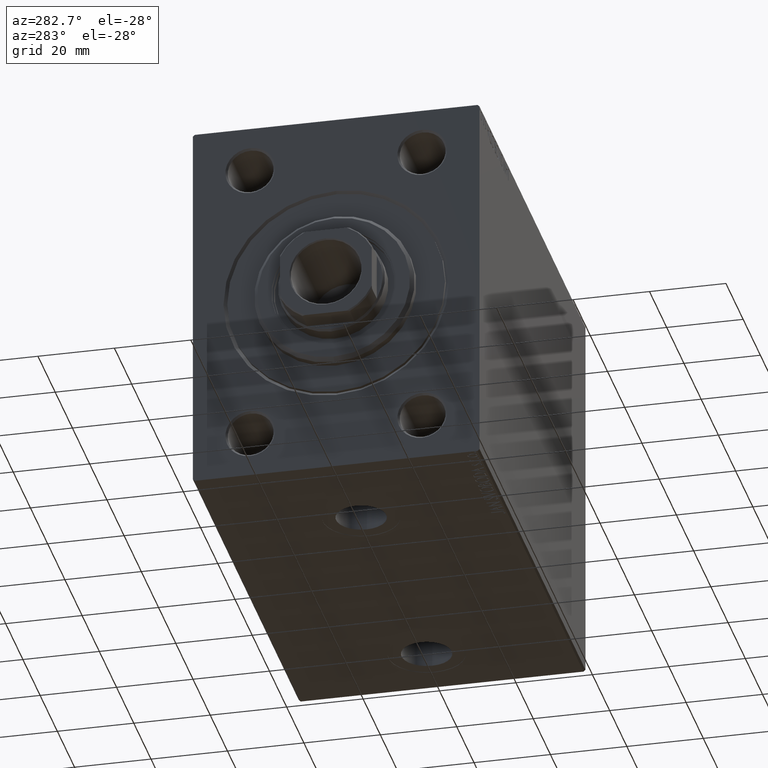
[diagram: clean part render]
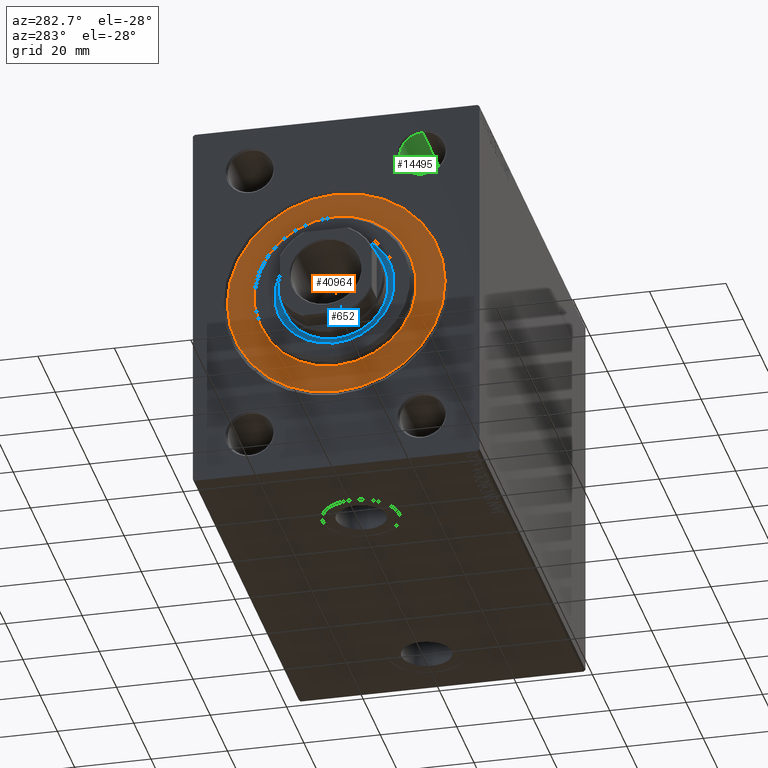
[diagram: same view with three faces highlighted in distinct colors, each labeled with its STEP entity id]
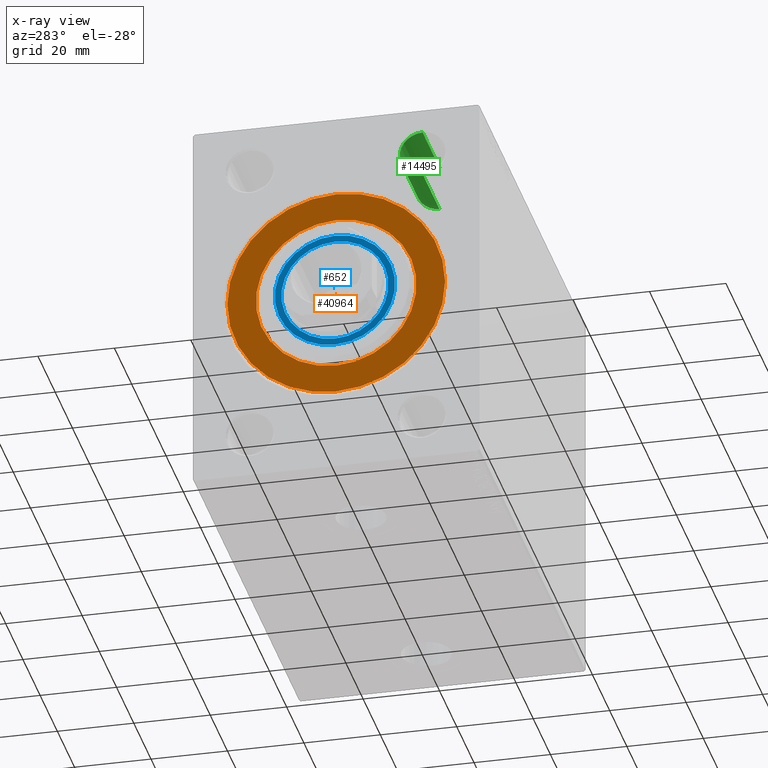
[diagram: x-ray of the same camera — body ghosted, the three highlighted faces saturated]
A machine part, auxiliary view with three faces highlighted in distinct colors.
The next image is the same camera in x-ray (body ghosted, the three faces saturated) — at least one of them is partly hidden behind the body in this view.
Their STEP definitions:

[orange] entity #40964 — the highlighted planar face has unit normal (1, -0, -0).
#242 = PLANE ( 'NONE',  #25212 ) ;
#1364 = DIRECTION ( 'NONE',  ( -1.000000000000000000, 0.000000000000000000, 0.000000000000000000 ) ) ;
#3196 = ORIENTED_EDGE ( 'NONE', *, *, #22097, .F. ) ;
#3577 = DIRECTION ( 'NONE',  ( 1.000000000000000000, -0.000000000000000000, 0.000000000000000000 ) ) ;
#4033 = CARTESIAN_POINT ( 'NONE',  ( 0.000000000000000000, 0.000000000000000000, 0.000000000000000000 ) ) ;
#4607 = FACE_BOUND ( 'NONE', #43104, .T. ) ;
#4690 = AXIS2_PLACEMENT_3D ( 'NONE', #26553, #1364, #30252 ) ;
#5368 = DIRECTION ( 'NONE',  ( 1.000000000000000000, -0.000000000000000000, 0.000000000000000000 ) ) ;
#6583 = CARTESIAN_POINT ( 'NONE',  ( 0.000000000000000000, 0.000000000000000000, 21.00000000000000000 ) ) ;
#6600 = VERTEX_POINT ( 'NONE', #33738 ) ;
#9009 = ORIENTED_EDGE ( 'NONE', *, *, #13818, .F. ) ;
#9510 = CARTESIAN_POINT ( 'NONE',  ( 0.000000000000000000, 0.000000000000000000, 0.000000000000000000 ) ) ;
#11171 = DIRECTION ( 'NONE',  ( 0.000000000000000000, 0.000000000000000000, -1.000000000000000000 ) ) ;
#11531 = DIRECTION ( 'NONE',  ( -1.000000000000000000, 0.000000000000000000, 0.000000000000000000 ) ) ;
#11760 = FACE_OUTER_BOUND ( 'NONE', #37287, .T. ) ;
#11994 = VERTEX_POINT ( 'NONE', #30391 ) ;
#13543 = CIRCLE ( 'NONE', #4690, 28.50000000000000000 ) ;
#13818 = EDGE_CURVE ( 'NONE', #28629, #11994, #13543, .T. ) ;
#16355 = CARTESIAN_POINT ( 'NONE',  ( 0.000000000000000000, 0.000000000000000000, 0.000000000000000000 ) ) ;
#18693 = DIRECTION ( 'NONE',  ( 0.000000000000000000, 0.000000000000000000, 1.000000000000000000 ) ) ;
#19590 = EDGE_CURVE ( 'NONE', #29839, #6600, #22450, .T. ) ;
#21449 = CARTESIAN_POINT ( 'NONE',  ( 0.000000000000000000, 0.000000000000000000, -28.50000000000000000 ) ) ;
#21765 = CIRCLE ( 'NONE', #33598, 28.50000000000000000 ) ;
#22097 = EDGE_CURVE ( 'NONE', #11994, #28629, #21765, .T. ) ;
#22384 = CARTESIAN_POINT ( 'NONE',  ( 0.000000000000000000, 0.000000000000000000, 0.000000000000000000 ) ) ;
#22450 = CIRCLE ( 'NONE', #29098, 21.00000000000000000 ) ;
#23004 = ORIENTED_EDGE ( 'NONE', *, *, #35925, .F. ) ;
#24863 = ORIENTED_EDGE ( 'NONE', *, *, #19590, .F. ) ;
#25212 = AXIS2_PLACEMENT_3D ( 'NONE', #22384, #11531, #18693 ) ;
#26553 = CARTESIAN_POINT ( 'NONE',  ( 0.000000000000000000, 0.000000000000000000, 0.000000000000000000 ) ) ;
#28629 = VERTEX_POINT ( 'NONE', #21449 ) ;
#29098 = AXIS2_PLACEMENT_3D ( 'NONE', #9510, #5368, #40726 ) ;
#29407 = CIRCLE ( 'NONE', #45657, 21.00000000000000000 ) ;
#29839 = VERTEX_POINT ( 'NONE', #6583 ) ;
#30252 = DIRECTION ( 'NONE',  ( 0.000000000000000000, 0.000000000000000000, 1.000000000000000000 ) ) ;
#30391 = CARTESIAN_POINT ( 'NONE',  ( 0.000000000000000000, 3.490243377569956456E-15, 28.50000000000000000 ) ) ;
#30446 = DIRECTION ( 'NONE',  ( 0.000000000000000000, 0.000000000000000000, 1.000000000000000000 ) ) ;
#33598 = AXIS2_PLACEMENT_3D ( 'NONE', #16355, #36934, #30446 ) ;
#33738 = CARTESIAN_POINT ( 'NONE',  ( 0.000000000000000000, 2.571758278209441661E-15, -21.00000000000000000 ) ) ;
#35925 = EDGE_CURVE ( 'NONE', #6600, #29839, #29407, .T. ) ;
#36934 = DIRECTION ( 'NONE',  ( -1.000000000000000000, 0.000000000000000000, 0.000000000000000000 ) ) ;
#37287 = EDGE_LOOP ( 'NONE', ( #9009, #3196 ) ) ;
#40726 = DIRECTION ( 'NONE',  ( 0.000000000000000000, 0.000000000000000000, -1.000000000000000000 ) ) ;
#40964 = ADVANCED_FACE ( 'NONE', ( #4607, #11760 ), #242, .F. ) ;
#43104 = EDGE_LOOP ( 'NONE', ( #24863, #23004 ) ) ;
#45657 = AXIS2_PLACEMENT_3D ( 'NONE', #4033, #3577, #11171 ) ;

[blue] entity #652 — the highlighted planar face has unit normal (-1, 0, 0).
#54 = CARTESIAN_POINT ( 'NONE',  ( 1.500000000000000000, 0.000000000000000000, 15.75000000000000000 ) ) ;
#652 = ADVANCED_FACE ( 'NONE', ( #40968, #44200 ), #12758, .T. ) ;
#907 = DIRECTION ( 'NONE',  ( 1.000000000000000000, 0.000000000000000000, 0.000000000000000000 ) ) ;
#1480 = ORIENTED_EDGE ( 'NONE', *, *, #26725, .F. ) ;
#1837 = CARTESIAN_POINT ( 'NONE',  ( 1.500000000000000000, 0.000000000000000000, 0.000000000000000000 ) ) ;
#2818 = AXIS2_PLACEMENT_3D ( 'NONE', #26846, #9296, #5826 ) ;
#4783 = DIRECTION ( 'NONE',  ( 0.000000000000000000, 0.000000000000000000, -1.000000000000000000 ) ) ;
#5707 = DIRECTION ( 'NONE',  ( 1.000000000000000000, 0.000000000000000000, 0.000000000000000000 ) ) ;
#5826 = DIRECTION ( 'NONE',  ( 0.000000000000000000, 0.000000000000000000, -1.000000000000000000 ) ) ;
#6631 = CARTESIAN_POINT ( 'NONE',  ( 1.499999999999999556, 0.000000000000000000, -14.00000000000000178 ) ) ;
#8075 = DIRECTION ( 'NONE',  ( 0.000000000000000000, 0.000000000000000000, -1.000000000000000000 ) ) ;
#9296 = DIRECTION ( 'NONE',  ( 1.000000000000000000, 0.000000000000000000, 0.000000000000000000 ) ) ;
#12373 = EDGE_LOOP ( 'NONE', ( #26249, #26720 ) ) ;
#12758 = PLANE ( 'NONE',  #2818 ) ;
#13133 = VERTEX_POINT ( 'NONE', #54 ) ;
#14765 = CARTESIAN_POINT ( 'NONE',  ( 1.500000000000000000, 1.928818708657080950E-15, -15.75000000000000000 ) ) ;
#15184 = CARTESIAN_POINT ( 'NONE',  ( 1.499999999999999556, 0.000000000000000000, 0.000000000000000000 ) ) ;
#16558 = ORIENTED_EDGE ( 'NONE', *, *, #34776, .F. ) ;
#16630 = AXIS2_PLACEMENT_3D ( 'NONE', #1837, #30021, #26552 ) ;
#19381 = CARTESIAN_POINT ( 'NONE',  ( 1.500000000000000000, 0.000000000000000000, 0.000000000000000000 ) ) ;
#19695 = AXIS2_PLACEMENT_3D ( 'NONE', #37137, #29966, #4783 ) ;
#21731 = EDGE_CURVE ( 'NONE', #13133, #39057, #39489, .T. ) ;
#21940 = EDGE_LOOP ( 'NONE', ( #16558, #1480 ) ) ;
#26249 = ORIENTED_EDGE ( 'NONE', *, *, #21731, .T. ) ;
#26500 = DIRECTION ( 'NONE',  ( 0.000000000000000000, 0.000000000000000000, -1.000000000000000000 ) ) ;
#26552 = DIRECTION ( 'NONE',  ( 0.000000000000000000, 0.000000000000000000, -1.000000000000000000 ) ) ;
#26720 = ORIENTED_EDGE ( 'NONE', *, *, #37501, .T. ) ;
#26725 = EDGE_CURVE ( 'NONE', #44808, #31201, #30022, .T. ) ;
#26846 = CARTESIAN_POINT ( 'NONE',  ( 1.500000000000000000, 0.000000000000000000, 0.000000000000000000 ) ) ;
#27910 = CIRCLE ( 'NONE', #33819, 14.00000000000000178 ) ;
#28196 = AXIS2_PLACEMENT_3D ( 'NONE', #19381, #907, #8075 ) ;
#29966 = DIRECTION ( 'NONE',  ( 1.000000000000000000, 0.000000000000000000, 0.000000000000000000 ) ) ;
#30021 = DIRECTION ( 'NONE',  ( 1.000000000000000000, 0.000000000000000000, 0.000000000000000000 ) ) ;
#30022 = CIRCLE ( 'NONE', #19695, 14.00000000000000178 ) ;
#31201 = VERTEX_POINT ( 'NONE', #6631 ) ;
#33819 = AXIS2_PLACEMENT_3D ( 'NONE', #15184, #5707, #26500 ) ;
#34776 = EDGE_CURVE ( 'NONE', #31201, #44808, #27910, .T. ) ;
#37137 = CARTESIAN_POINT ( 'NONE',  ( 1.499999999999999556, 0.000000000000000000, 0.000000000000000000 ) ) ;
#37501 = EDGE_CURVE ( 'NONE', #39057, #13133, #40755, .T. ) ;
#39024 = CARTESIAN_POINT ( 'NONE',  ( 1.499999999999999556, 1.714505518806294835E-15, 14.00000000000000178 ) ) ;
#39057 = VERTEX_POINT ( 'NONE', #14765 ) ;
#39489 = CIRCLE ( 'NONE', #16630, 15.75000000000000000 ) ;
#40755 = CIRCLE ( 'NONE', #28196, 15.75000000000000000 ) ;
#40968 = FACE_BOUND ( 'NONE', #21940, .T. ) ;
#44200 = FACE_OUTER_BOUND ( 'NONE', #12373, .T. ) ;
#44808 = VERTEX_POINT ( 'NONE', #39024 ) ;

[green] entity #14495 — the highlighted cylindrical surface (edge-blend (fillet) strip) has radius 6 mm, axis along (-1, -0, -0).
#1361 = CARTESIAN_POINT ( 'NONE',  ( 20.00000000000000000, -22.50000000000000000, 43.99999999999999289 ) ) ;
#1460 = CARTESIAN_POINT ( 'NONE',  ( 0.000000000000000000, -22.50000000000000000, 43.99999999999999289 ) ) ;
#2773 = ORIENTED_EDGE ( 'NONE', *, *, #3227, .T. ) ;
#3227 = EDGE_CURVE ( 'NONE', #32340, #5189, #30196, .T. ) ;
#5189 = VERTEX_POINT ( 'NONE', #44109 ) ;
#5577 = ORIENTED_EDGE ( 'NONE', *, *, #36976, .T. ) ;
#5637 = DIRECTION ( 'NONE',  ( -1.000000000000000000, -0.000000000000000000, -0.000000000000000000 ) ) ;
#8249 = CARTESIAN_POINT ( 'NONE',  ( 20.00000000000000000, -22.50000000000000000, 31.99999999999999289 ) ) ;
#8632 = LINE ( 'NONE', #1460, #45048 ) ;
#10499 = DIRECTION ( 'NONE',  ( 0.000000000000000000, 0.000000000000000000, 1.000000000000000000 ) ) ;
#10950 = EDGE_LOOP ( 'NONE', ( #22259, #38864, #5577, #2773 ) ) ;
#12294 = DIRECTION ( 'NONE',  ( -1.000000000000000000, -0.000000000000000000, -0.000000000000000000 ) ) ;
#14495 = ADVANCED_FACE ( 'NONE', ( #40497 ), #16224, .F. ) ;
#16224 = CYLINDRICAL_SURFACE ( 'NONE', #26118, 5.999999999999998224 ) ;
#17219 = DIRECTION ( 'NONE',  ( -1.000000000000000000, -0.000000000000000000, -0.000000000000000000 ) ) ;
#17267 = EDGE_CURVE ( 'NONE', #34673, #5189, #38766, .T. ) ;
#17657 = EDGE_CURVE ( 'NONE', #37578, #34673, #37166, .T. ) ;
#17877 = CARTESIAN_POINT ( 'NONE',  ( 0.4999999999999865663, -22.50000000000000000, 43.99999999999999289 ) ) ;
#18695 = VECTOR ( 'NONE', #34852, 1000.000000000000000 ) ;
#21184 = CARTESIAN_POINT ( 'NONE',  ( 0.000000000000000000, -22.50000000000000000, 31.99999999999999289 ) ) ;
#22259 = ORIENTED_EDGE ( 'NONE', *, *, #17267, .F. ) ;
#23675 = CARTESIAN_POINT ( 'NONE',  ( 20.00000000000000000, -22.50000000000000000, 37.99999999999999289 ) ) ;
#25093 = DIRECTION ( 'NONE',  ( 0.000000000000000000, 0.000000000000000000, -1.000000000000000000 ) ) ;
#26118 = AXIS2_PLACEMENT_3D ( 'NONE', #44421, #12294, #40963 ) ;
#27545 = AXIS2_PLACEMENT_3D ( 'NONE', #23675, #17219, #10499 ) ;
#30196 = CIRCLE ( 'NONE', #43480, 5.999999999999998224 ) ;
#32043 = DIRECTION ( 'NONE',  ( -1.000000000000000000, 0.000000000000000000, 0.000000000000000000 ) ) ;
#32340 = VERTEX_POINT ( 'NONE', #17877 ) ;
#32490 = CARTESIAN_POINT ( 'NONE',  ( 0.4999999999999865663, -22.50000000000000000, 37.99999999999999289 ) ) ;
#34673 = VERTEX_POINT ( 'NONE', #8249 ) ;
#34852 = DIRECTION ( 'NONE',  ( -1.000000000000000000, -0.000000000000000000, -0.000000000000000000 ) ) ;
#36976 = EDGE_CURVE ( 'NONE', #37578, #32340, #8632, .T. ) ;
#37166 = CIRCLE ( 'NONE', #27545, 5.999999999999998224 ) ;
#37578 = VERTEX_POINT ( 'NONE', #1361 ) ;
#38766 = LINE ( 'NONE', #21184, #18695 ) ;
#38864 = ORIENTED_EDGE ( 'NONE', *, *, #17657, .F. ) ;
#40497 = FACE_OUTER_BOUND ( 'NONE', #10950, .T. ) ;
#40963 = DIRECTION ( 'NONE',  ( 0.000000000000000000, 0.000000000000000000, 1.000000000000000000 ) ) ;
#43480 = AXIS2_PLACEMENT_3D ( 'NONE', #32490, #32043, #25093 ) ;
#44109 = CARTESIAN_POINT ( 'NONE',  ( 0.4999999999999865663, -22.50000000000000000, 31.99999999999999289 ) ) ;
#44421 = CARTESIAN_POINT ( 'NONE',  ( 0.000000000000000000, -22.50000000000000000, 37.99999999999999289 ) ) ;
#45048 = VECTOR ( 'NONE', #5637, 1000.000000000000000 ) ;